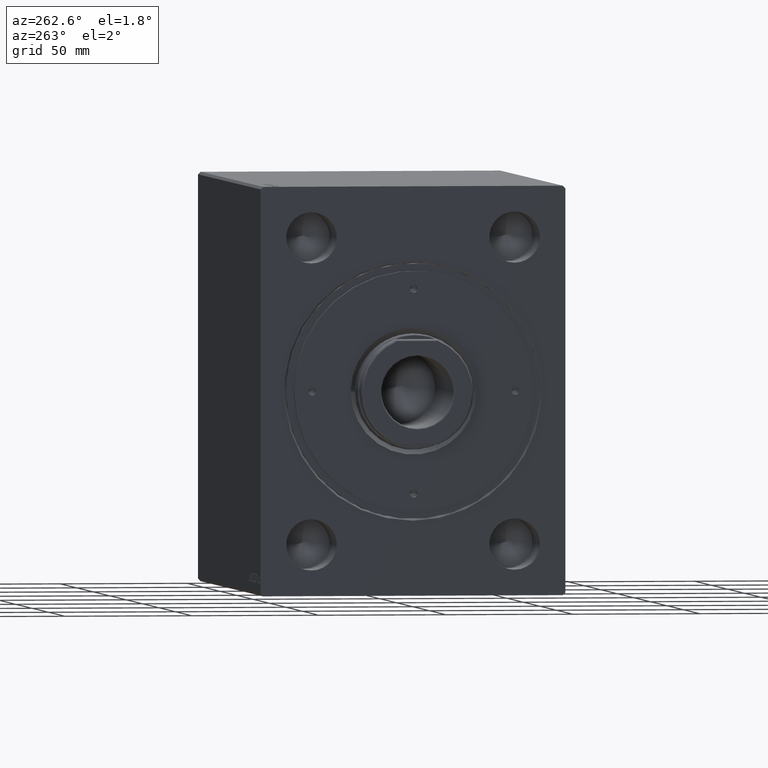
[diagram: clean part render]
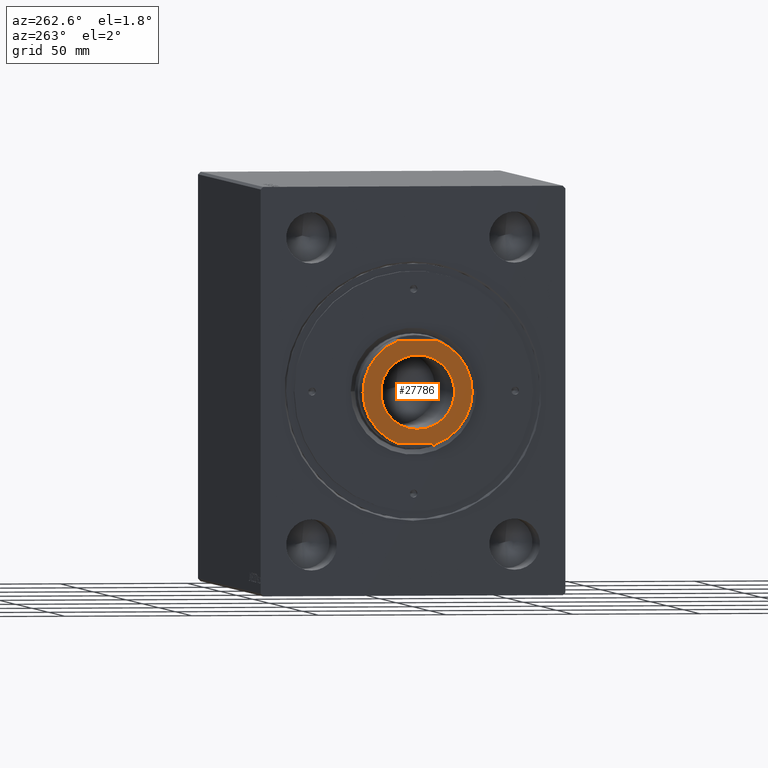
[diagram: same view with one face highlighted and labeled with its STEP entity id]
A machine part, auxiliary view. The second image highlights one B-rep face of the part: STEP entity #27786.
In plain terms, the highlighted planar face has unit normal (-1, 0, 0).
Its self-contained STEP definition (entity closure, byte-faithful):
#2986 = CIRCLE ( 'NONE', #24965, 21.49999999999999289 ) ;
#3077 = VERTEX_POINT ( 'NONE', #15074 ) ;
#4152 = FACE_BOUND ( 'NONE', #15000, .T. ) ;
#5774 = CARTESIAN_POINT ( 'NONE',  ( -14.55000000000003446, 1.781861092759403032E-15, 178.7000000000000171 ) ) ;
#6506 = LINE ( 'NONE', #30300, #24042 ) ;
#9335 = CARTESIAN_POINT ( 'NONE',  ( 0.000000000000000000, 0.000000000000000000, 178.7000000000000171 ) ) ;
#9985 = DIRECTION ( 'NONE',  ( -0.000000000000000000, -0.000000000000000000, -1.000000000000000000 ) ) ;
#10095 = ORIENTED_EDGE ( 'NONE', *, *, #28399, .T. ) ;
#10486 = VERTEX_POINT ( 'NONE', #11863 ) ;
#11062 = CARTESIAN_POINT ( 'NONE',  ( 0.000000000000000000, 0.000000000000000000, 178.7000000000000171 ) ) ;
#11863 = CARTESIAN_POINT ( 'NONE',  ( 20.00000000000000000, 7.889866919029723036, 178.7000000000000171 ) ) ;
#12068 = AXIS2_PLACEMENT_3D ( 'NONE', #37126, #9985, #23564 ) ;
#13842 = CARTESIAN_POINT ( 'NONE',  ( 0.000000000000000000, 0.000000000000000000, 178.7000000000000171 ) ) ;
#14067 = DIRECTION ( 'NONE',  ( 0.000000000000000000, 0.000000000000000000, 1.000000000000000000 ) ) ;
#14585 = VERTEX_POINT ( 'NONE', #22582 ) ;
#15000 = EDGE_LOOP ( 'NONE', ( #28838, #24028 ) ) ;
#15074 = CARTESIAN_POINT ( 'NONE',  ( -20.00000000000000000, -7.889866919029723036, 178.7000000000000171 ) ) ;
#15087 = EDGE_CURVE ( 'NONE', #38198, #42615, #33842, .T. ) ;
#15619 = DIRECTION ( 'NONE',  ( 0.000000000000000000, 1.000000000000000000, 0.000000000000000000 ) ) ;
#17887 = ORIENTED_EDGE ( 'NONE', *, *, #25882, .T. ) ;
#18167 = EDGE_LOOP ( 'NONE', ( #31364, #10095, #34169, #17887 ) ) ;
#18431 = VECTOR ( 'NONE', #15619, 1000.000000000000000 ) ;
#19140 = DIRECTION ( 'NONE',  ( 1.000000000000000000, 0.000000000000000000, 0.000000000000000000 ) ) ;
#20146 = EDGE_CURVE ( 'NONE', #14585, #3077, #6506, .T. ) ;
#21317 = CIRCLE ( 'NONE', #12068, 14.55000000000003446 ) ;
#21422 = CIRCLE ( 'NONE', #27825, 21.49999999999999289 ) ;
#22490 = CARTESIAN_POINT ( 'NONE',  ( 20.00000000000000000, -7.889866919029723036, 178.7000000000000171 ) ) ;
#22582 = CARTESIAN_POINT ( 'NONE',  ( -20.00000000000000000, 7.889866919029727477, 178.7000000000000171 ) ) ;
#22961 = EDGE_CURVE ( 'NONE', #27086, #10486, #39641, .T. ) ;
#23564 = DIRECTION ( 'NONE',  ( 1.000000000000000000, 0.000000000000000000, 0.000000000000000000 ) ) ;
#24023 = EDGE_CURVE ( 'NONE', #42615, #38198, #21317, .T. ) ;
#24028 = ORIENTED_EDGE ( 'NONE', *, *, #24023, .T. ) ;
#24042 = VECTOR ( 'NONE', #37195, 1000.000000000000000 ) ;
#24453 = CARTESIAN_POINT ( 'NONE',  ( 0.000000000000000000, 0.000000000000000000, 178.7000000000000171 ) ) ;
#24635 = DIRECTION ( 'NONE',  ( 0.000000000000000000, 0.000000000000000000, 1.000000000000000000 ) ) ;
#24965 = AXIS2_PLACEMENT_3D ( 'NONE', #9335, #39815, #19140 ) ;
#25203 = CARTESIAN_POINT ( 'NONE',  ( 14.55000000000003446, 0.000000000000000000, 178.7000000000000171 ) ) ;
#25882 = EDGE_CURVE ( 'NONE', #10486, #14585, #2986, .T. ) ;
#27086 = VERTEX_POINT ( 'NONE', #22490 ) ;
#27786 = ADVANCED_FACE ( 'NONE', ( #34632, #4152 ), #31292, .T. ) ;
#27825 = AXIS2_PLACEMENT_3D ( 'NONE', #13842, #14067, #41211 ) ;
#28399 = EDGE_CURVE ( 'NONE', #3077, #27086, #21422, .T. ) ;
#28762 = CARTESIAN_POINT ( 'NONE',  ( 20.00000000000000000, 7.984359711335630827, 178.7000000000000171 ) ) ;
#28838 = ORIENTED_EDGE ( 'NONE', *, *, #15087, .T. ) ;
#30300 = CARTESIAN_POINT ( 'NONE',  ( -20.00000000000000000, -7.984359711335630827, 178.7000000000000171 ) ) ;
#30646 = AXIS2_PLACEMENT_3D ( 'NONE', #11062, #24635, #39287 ) ;
#31292 = PLANE ( 'NONE',  #30646 ) ;
#31364 = ORIENTED_EDGE ( 'NONE', *, *, #20146, .T. ) ;
#31564 = DIRECTION ( 'NONE',  ( -0.000000000000000000, -0.000000000000000000, -1.000000000000000000 ) ) ;
#33842 = CIRCLE ( 'NONE', #43106, 14.55000000000003446 ) ;
#34169 = ORIENTED_EDGE ( 'NONE', *, *, #22961, .T. ) ;
#34632 = FACE_OUTER_BOUND ( 'NONE', #18167, .T. ) ;
#35349 = DIRECTION ( 'NONE',  ( 1.000000000000000000, 0.000000000000000000, 0.000000000000000000 ) ) ;
#37126 = CARTESIAN_POINT ( 'NONE',  ( 0.000000000000000000, 0.000000000000000000, 178.7000000000000171 ) ) ;
#37195 = DIRECTION ( 'NONE',  ( 0.000000000000000000, -1.000000000000000000, 0.000000000000000000 ) ) ;
#38198 = VERTEX_POINT ( 'NONE', #25203 ) ;
#39287 = DIRECTION ( 'NONE',  ( 1.000000000000000000, 0.000000000000000000, -0.000000000000000000 ) ) ;
#39641 = LINE ( 'NONE', #28762, #18431 ) ;
#39815 = DIRECTION ( 'NONE',  ( 0.000000000000000000, 0.000000000000000000, 1.000000000000000000 ) ) ;
#41211 = DIRECTION ( 'NONE',  ( 1.000000000000000000, 0.000000000000000000, 0.000000000000000000 ) ) ;
#42615 = VERTEX_POINT ( 'NONE', #5774 ) ;
#43106 = AXIS2_PLACEMENT_3D ( 'NONE', #24453, #31564, #35349 ) ;